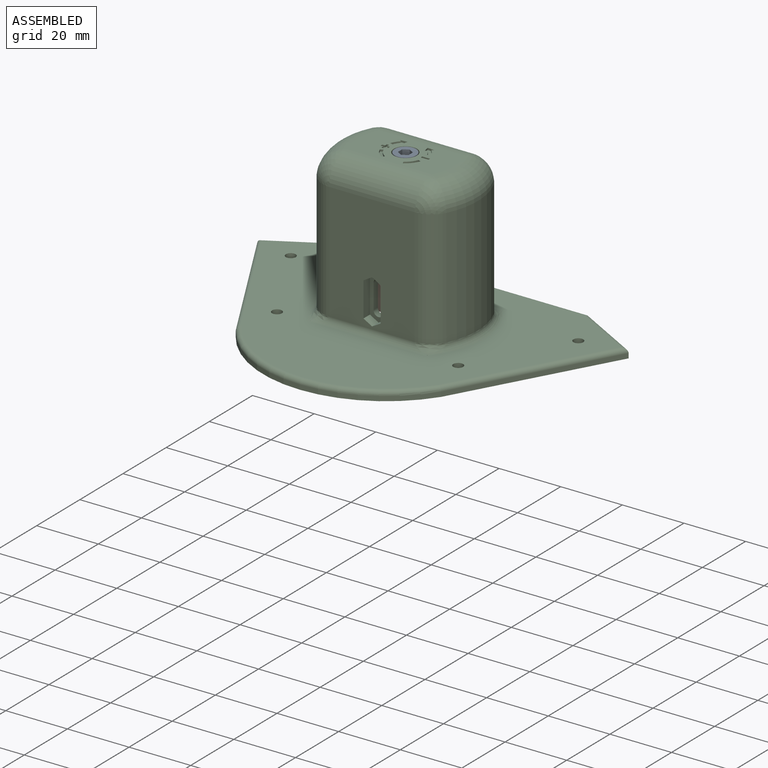
[diagram: assembled view]
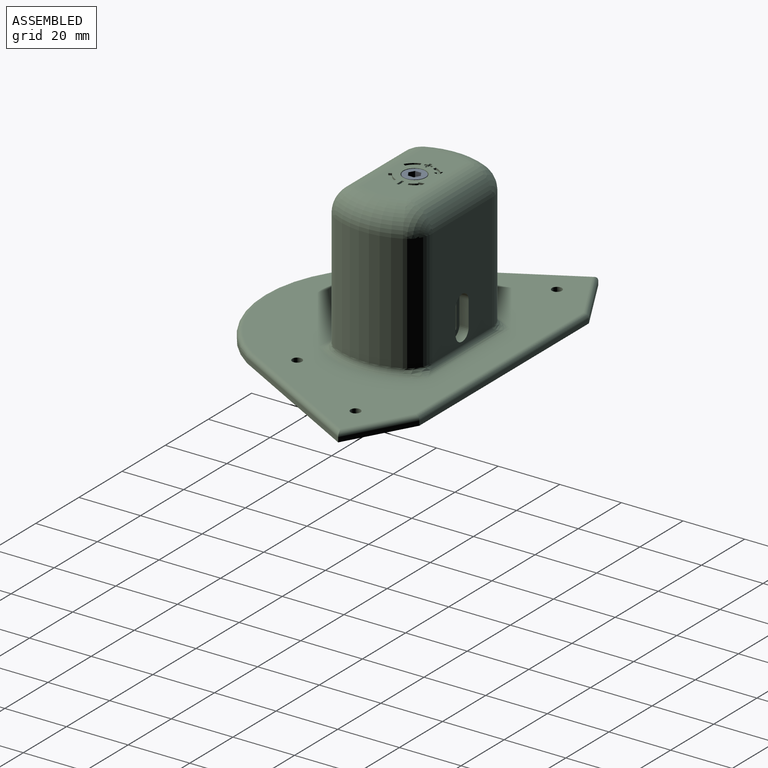
[diagram: assembled view, second angle]
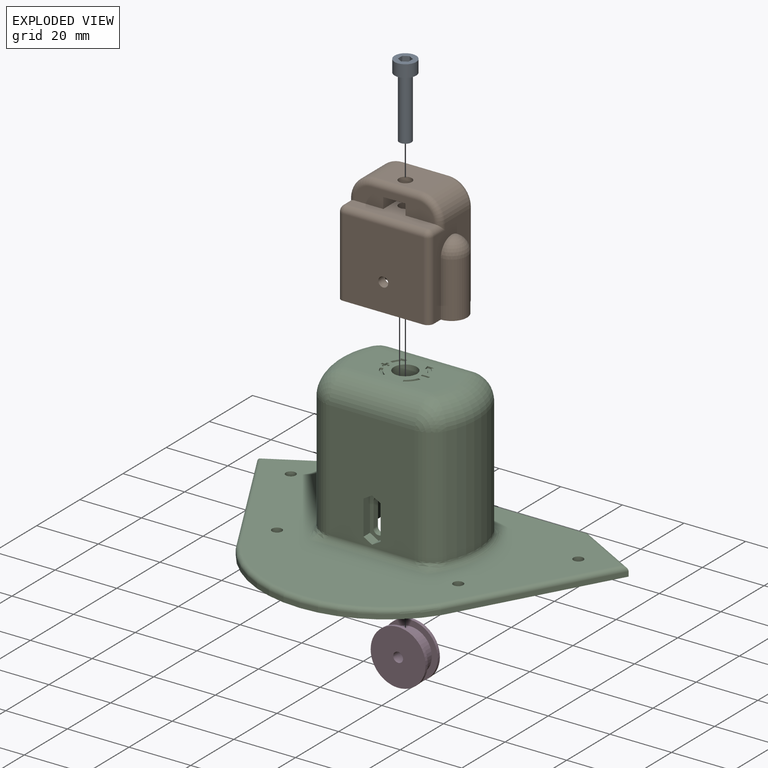
[diagram: exploded view]
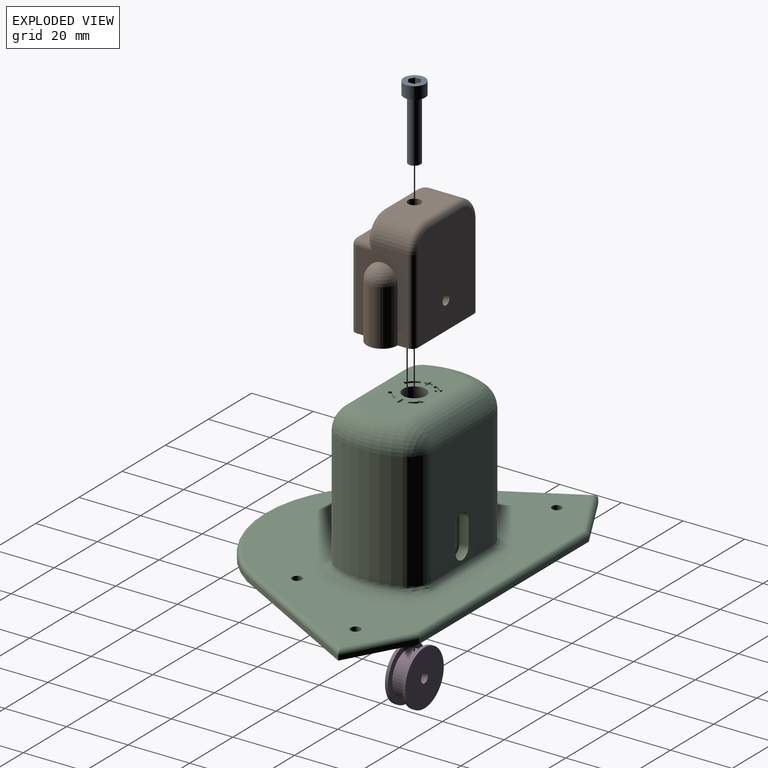
[diagram: exploded view, second angle]
ASSEMBLY  parts=4 mates=5
PART A: 12 faces, bbox 7x7x24 mm
  f0: cylinder r=3.5mm len=7mm, axis (0,0,-1), area 88mm2, adj f1,f2
  f1: plane 7x7mm, normal (0,0,1), area 28.1mm2, adj f0,f5,f6,f7,f8,f9,f10
  f2: plane 7x7mm, normal (0,0,-1), area 25.9mm2, adj f0,f3
  f3: cylinder r=2mm len=20mm, axis (0,0,1), area 251.3mm2, adj f2,f4
  f4: plane 4x4mm, normal (0,0,-1), area 12.6mm2, adj f3
  f5: plane 2x1.73mm, normal (-0.5,0.87,0), area 4mm2, adj f1,f6,f10,f11
  f6: plane 2x2mm, normal (-1,0,0), area 4mm2, adj f1,f5,f7,f11
  f7: plane 2x1.73mm, normal (-0.5,-0.87,0), area 4mm2, adj f1,f6,f8,f11
  f8: plane 2x1.73mm, normal (0.5,-0.87,0), area 4mm2, adj f1,f7,f9,f11
  f9: plane 2x2mm, normal (1,0,0), area 4mm2, adj f1,f8,f10,f11
  f10: plane 2x1.73mm, normal (0.5,0.87,0), area 4mm2, adj f1,f5,f9,f11
  f11: plane 4x3.46mm, normal (0,0,1), area 10.4mm2, adj f5,f6,f7,f8,f9,f10
PART B: 51 faces, bbox 40x20.5x35.6 mm
  f0: plane 27.5x16.5mm, normal (1,0,0), area 224.2mm2, adj f8,f13,f23,f28,f37,f40,f41,f43
  f1: plane 26x25.5mm, normal (0,1,0), area 655mm2, adj f8,f9,f28,f29,f47
  f2: plane 33x26mm, normal (0,-1,0), area 837mm2, adj f8,f10,f23,f24,f25,f26,f27
  f3: plane 12.5x8mm, normal (-1,0,0), area 100mm2, adj f8,f12,f30,f33
  f4: plane 22x19mm, normal (0,1,0), area 358mm2, adj f8,f10,f30,f31,f32
  f5: plane 12.5x8mm, normal (1,0,0), area 100mm2, adj f8,f12,f32,f35
  f6: plane 22x19mm, normal (0,-1,0), area 358mm2, adj f8,f9,f33,f34,f35
  f7: plane 27.5x16.5mm, normal (-1,0,0), area 224.2mm2, adj f8,f14,f27,f29,f38,f39,f48,f50
  f8: plane 40x20.5mm, normal (0,0,-1), area 343mm2, adj f0,f1,f2,f3,f4,f5,f6,f7
  f9: cylinder r=1.6mm len=3.2mm, axis (0,-1,0), area 30.2mm2, adj f1,f6
  f10: cylinder r=1.6mm len=3.2mm, axis (0,-1,0), area 30.2mm2, adj f2,f4
  f11: plane 15x11.35mm, normal (0,0,1), area 156.4mm2, adj f13,f14,f15,f25,f44
  f12: cylinder r=12mm len=24mm, axis (0,1,0), area 457.3mm2, adj f3,f5,f16,f31,f34
  f13: cylinder r=7.5mm len=11.35mm, axis (0,-1,0), area 133.7mm2, adj f0,f11,f24,f42
  f14: cylinder r=7.5mm len=11.35mm, axis (0,1,0), area 133.7mm2, adj f7,f11,f26,f46
  f15: cylinder r=2.1mm len=4.2mm, axis (0,0,1), area 52.8mm2, adj f11,f22
  f16: cylinder r=2.1mm len=7.69mm, axis (0,0,1), area 100.2mm2, adj f12,f21
  f17: plane 7.18x3.5mm, normal (1,0,0), area 25.1mm2, adj f18,f21,f22,f36
  f18: plane 3.6x3.5mm, normal (0.5,0.87,0), area 14.5mm2, adj f17,f19,f21,f22
  f19: plane 3.6x3.5mm, normal (-0.5,0.87,0), area 14.5mm2, adj f18,f20,f21,f22
  f20: plane 7.18x3.5mm, normal (-1,0,0), area 25.1mm2, adj f19,f21,f22,f36
  f21: plane 26x12.41mm, normal (0,0,1), area 127.2mm2, adj f16,f17,f18,f19,f20,f36,f43,f47
  f22: plane 9.26x7.2mm, normal (0,0,-1), area 45.3mm2, adj f15,f17,f18,f19,f20,f36
  f23: cylinder r=2mm len=27.5mm, axis (0,0,1), area 86.4mm2, adj f0,f2,f8,f24
  f24: torus R=5.5mm, axis (0,-1,0), area 33.4mm2, adj f2,f13,f23,f25
  f25: cylinder r=2mm len=15mm, axis (-1,0,0), area 47.1mm2, adj f2,f11,f24,f26
  f26: torus R=5.5mm, axis (0,-1,0), area 33.4mm2, adj f2,f14,f25,f27
  f27: cylinder r=2mm len=27.5mm, axis (0,0,-1), area 86.4mm2, adj f2,f7,f8,f26
  f28: cylinder r=2mm len=25.5mm, axis (0,0,-1), area 80.1mm2, adj f0,f1,f8,f45
  f29: cylinder r=2mm len=25.5mm, axis (0,0,1), area 80.1mm2, adj f1,f7,f8,f49
  f30: cylinder r=1mm len=8mm, axis (0,0,-1), area 12.6mm2, adj f3,f4,f8,f31
  f31: torus R=11mm, axis (0,-1,0), area 57.4mm2, adj f4,f12,f30,f32
  f32: cylinder r=1mm len=8mm, axis (0,0,1), area 12.6mm2, adj f4,f5,f8,f31
  f33: cylinder r=1mm len=8mm, axis (0,0,1), area 12.6mm2, adj f3,f6,f8,f34
  f34: torus R=11mm, axis (0,-1,0), area 57.4mm2, adj f6,f12,f33,f35
  f35: cylinder r=1mm len=8mm, axis (0,0,-1), area 12.6mm2, adj f5,f6,f8,f34
  f36: plane 26x5.5mm, normal (0,1,0), area 104.8mm2, adj f17,f20,f21,f22,f42,f44,f46
  f37: cylinder r=5mm len=18mm, axis (0,0,-1), area 282.7mm2, adj f0,f8,f40
  f38: cylinder r=5mm len=18mm, axis (0,0,-1), area 282.7mm2, adj f7,f8,f39
  f39: sphere r=5mm, area 78.5mm2, adj f7,f38
  f40: sphere r=5mm, area 78.5mm2, adj f0,f37
  f41: cylinder r=2mm len=2mm, axis (0,0,-1), area 2.3mm2, adj f0,f42,f43
  f42: torus R=5.5mm, axis (0,-1,0), area 33.4mm2, adj f13,f36,f41,f44
  f43: cylinder r=2mm len=5.15mm, axis (0,1,0), area 12.2mm2, adj f0,f21,f41,f45
  f44: cylinder r=2mm len=15mm, axis (-1,0,0), area 47.1mm2, adj f11,f36,f42,f46
  f45: sphere r=2mm, area 6.3mm2, adj f28,f43,f47
  f46: torus R=5.5mm, axis (0,-1,0), area 33.4mm2, adj f14,f36,f44,f48
  f47: cylinder r=2mm len=26mm, axis (-1,0,0), area 81.7mm2, adj f1,f21,f45,f49
  f48: cylinder r=2mm len=2mm, axis (0,0,-1), area 2.3mm2, adj f7,f46,f50
  f49: sphere r=2mm, area 6.3mm2, adj f29,f47,f50
  f50: cylinder r=2mm len=5.15mm, axis (0,1,0), area 12.2mm2, adj f7,f21,f48,f49
PART C: 124 faces, bbox 120.5x81.3x51 mm
  f0: cylinder r=1.6mm len=3.2mm, axis (0,1,0), area 10.1mm2, adj f1,f3,f21,f117
  f1: plane 8x2mm, normal (-1,0,0), area 16mm2, adj f0,f2,f21,f117
  f2: cylinder r=1.6mm len=3.2mm, axis (0,1,0), area 10.1mm2, adj f1,f3,f21,f117
  f3: plane 8x2mm, normal (1,0,0), area 16mm2, adj f0,f2,f21,f117
  f4: plane 8x2mm, normal (1,0,0), area 16mm2, adj f5,f7,f17,f112
  f5: cylinder r=1.6mm len=3.2mm, axis (0,1,0), area 10.1mm2, adj f4,f6,f17,f112
  f6: plane 8x2mm, normal (-1,0,0), area 16mm2, adj f5,f7,f17,f112
  f7: cylinder r=1.6mm len=3.2mm, axis (0,1,0), area 10.1mm2, adj f4,f6,f17,f112
  f8: plane 31.09x14.9mm, normal (0,0,1), area 378.3mm2, adj f41,f46,f47,f51,f58,f68,f69,f70
  f9: cylinder r=2.2mm len=4.4mm, axis (0,0,1), area 55.3mm2, adj f39,f40
  f10: plane 120.49x77.95mm, normal (0,0,-1), area 4780.5mm2, adj f11,f12,f13,f14,f15,f16,f17,f18
  f11: plane 78.54x1.5mm, normal (0,1,0), area 117.8mm2, adj f10,f12,f26,f66
  f12: plane 20.98x11.66mm, normal (-0.49,0.87,0), area 36mm2, adj f10,f11,f13,f64
  f13: plane 48.51x26.97mm, normal (-0.87,-0.49,0), area 83.2mm2, adj f10,f12,f14,f62
  f14: cylinder r=40.03mm len=66.56mm, axis (0,0,-1), area 117.9mm2, adj f10,f13,f15,f63
  f15: plane 48.51x26.97mm, normal (0.87,-0.49,0), area 83.2mm2, adj f10,f14,f26,f65
  f16: plane 43x5.26mm, normal (1,0,0), area 226.3mm2, adj f10,f17,f27,f39
  f17: plane 43x30.4mm, normal (0,-1,0), area 1273.6mm2, adj f4,f5,f6,f7,f10,f16,f18,f39
  f18: plane 43x5.26mm, normal (-1,0,0), area 226.3mm2, adj f10,f17,f19,f39
  f19: cylinder r=5.19mm len=43mm, axis (0,0,-1), area 684.8mm2, adj f10,f18,f20,f39
  f20: plane 43x5.26mm, normal (-1,0,0), area 226.3mm2, adj f10,f19,f21,f39
  f21: plane 43x30.4mm, normal (0,1,0), area 1273.6mm2, adj f0,f1,f2,f3,f10,f20,f22,f39
  f22: plane 43x5.26mm, normal (1,0,0), area 226.3mm2, adj f10,f21,f27,f39
  f23: cylinder r=1.6mm len=3.2mm, axis (0,0,-1), area 30.2mm2, adj f10,f29
  f24: cylinder r=1.6mm len=3.2mm, axis (0,0,-1), area 30.2mm2, adj f10,f29
  f25: cylinder r=1.6mm len=3.2mm, axis (0,0,-1), area 30.2mm2, adj f10,f29
  f26: plane 20.98x11.66mm, normal (0.49,0.87,0), area 36mm2, adj f10,f11,f15,f67
  f27: cylinder r=5.19mm len=43mm, axis (0,0,-1), area 684.8mm2, adj f10,f16,f22,f39
  f28: cylinder r=1.6mm len=3.2mm, axis (0,0,-1), area 30.2mm2, adj f10,f29
  f29: plane 116.41x74.95mm, normal (0,0,1), area 4389.4mm2, adj f23,f24,f25,f28,f42,f43,f44,f45
  f30: plane 44x2mm, normal (0,-1,0), area 88mm2, adj f10,f31,f33,f34
  f31: plane 17.48x2mm, normal (-1,0,0), area 35mm2, adj f10,f30,f32,f34
  f32: cylinder r=35.21mm len=44mm, axis (0,0,-1), area 95.1mm2, adj f10,f31,f33,f34
  f33: plane 17.48x2mm, normal (1,0,0), area 35mm2, adj f10,f30,f32,f34
  f34: plane 44x25.2mm, normal (0,0,-1), area 1001mm2, adj f30,f31,f32,f33
  f35: plane 38x27.65mm, normal (0,1,0), area 974.5mm2, adj f42,f49,f51,f53,f113,f114,f115,f116
  f36: cylinder r=25mm len=38mm, axis (0,0,-1), area 861.9mm2, adj f44,f46,f53,f60
  f37: plane 38x27.65mm, normal (0,-1,0), area 979.8mm2, adj f45,f56,f58,f60,f118,f119,f120,f121
  f38: cylinder r=25mm len=38mm, axis (0,0,-1), area 861.9mm2, adj f43,f47,f49,f56
  f39: plane 40.4x20.9mm, normal (0,0,-1), area 700.9mm2, adj f9,f16,f17,f18,f19,f20,f21,f22
  f40: plane 7.5x7.5mm, normal (0,0,1), area 29mm2, adj f9,f41
  f41: cylinder r=3.75mm len=7.5mm, axis (0,0,1), area 94.2mm2, adj f8,f40
  f42: cylinder r=2mm len=38.3mm, axis (-1,0,0), area 99.7mm2, adj f29,f35,f48,f54
  f43: torus R=27mm, axis (0,0,1), area 90.4mm2, adj f29,f38,f48,f55
  f44: torus R=27mm, axis (0,0,1), area 90.4mm2, adj f29,f36,f54,f61
  f45: cylinder r=2mm len=38.3mm, axis (1,0,0), area 99.7mm2, adj f29,f37,f55,f61
  f46: torus R=17mm, axis (0,0,1), area 251.9mm2, adj f8,f36,f52,f59
  f47: torus R=17mm, axis (0,0,1), area 251.9mm2, adj f8,f38,f50,f57
  f48: bspline ~7.2x6.51mm, area 19.4mm2, adj f42,f43,f49
  f49: cylinder r=8mm len=38mm, axis (0,0,-1), area 339.6mm2, adj f35,f38,f48,f50
  f50: sphere r=8mm, area 71.5mm2, adj f47,f49,f51
  f51: cylinder r=8mm len=27.65mm, axis (1,0,0), area 347.5mm2, adj f8,f35,f50,f52
  f52: sphere r=8mm, area 71.5mm2, adj f46,f51,f53
  f53: cylinder r=8mm len=38mm, axis (0,0,-1), area 339.6mm2, adj f35,f36,f52,f54
  f54: bspline ~7.2x6.51mm, area 19.4mm2, adj f42,f44,f53
  f55: bspline ~7.2x6.51mm, area 19.4mm2, adj f43,f45,f56
  f56: cylinder r=8mm len=38mm, axis (0,0,-1), area 339.6mm2, adj f37,f38,f55,f57
  f57: sphere r=8mm, area 71.5mm2, adj f47,f56,f58
  f58: cylinder r=8mm len=27.65mm, axis (-1,0,0), area 347.5mm2, adj f8,f37,f57,f59
  f59: sphere r=8mm, area 71.5mm2, adj f46,f58,f60
  f60: cylinder r=8mm len=38mm, axis (0,0,-1), area 339.6mm2, adj f36,f37,f59,f61
  f61: bspline ~7.2x6.51mm, area 19.4mm2, adj f44,f45,f60
  f62: cylinder r=1.5mm len=49.24mm, axis (-0.49,0.87,0), area 129.4mm2, adj f13,f29,f63,f64
  f63: torus R=38.53mm, axis (0,0,1), area 182.5mm2, adj f14,f29,f62,f65
  f64: cylinder r=1.5mm len=21.71mm, axis (0.87,0.49,0), area 54.8mm2, adj f12,f29,f62,f66
  f65: cylinder r=1.5mm len=49.24mm, axis (-0.49,-0.87,0), area 129.4mm2, adj f15,f29,f63,f67
  f66: cylinder r=1.5mm len=78.54mm, axis (1,0,0), area 184.1mm2, adj f11,f29,f64,f67
  f67: cylinder r=1.5mm len=21.71mm, axis (0.87,-0.49,0), area 54.8mm2, adj f26,f29,f65,f66
  f68: plane 2.5x0.6mm, normal (0,-1,0), area 1.5mm2, adj f8,f69,f71,f72
  f69: plane 0.75x0.6mm, normal (1,0,0), area 0.4mm2, adj f8,f68,f70,f72
  f70: plane 2.5x0.6mm, normal (0,1,0), area 1.5mm2, adj f8,f69,f71,f72
  f71: plane 0.75x0.6mm, normal (-1,0,0), area 0.4mm2, adj f8,f68,f70,f72
  f72: plane 2.5x0.75mm, normal (0,0,1), area 1.9mm2, adj f68,f69,f70,f71
  f73: cylinder r=6mm len=3.14mm, axis (0,0,1), area 2.5mm2, adj f8,f74,f76,f77
  f74: plane 0.87x0.6mm, normal (0.87,0.5,0), area 0.6mm2, adj f8,f73,f75,f77
  f75: cylinder r=7mm len=3.67mm, axis (0,0,1), area 2.9mm2, adj f8,f74,f76,f77
  f76: plane 0.94x0.6mm, normal (-0.34,-0.94,0), area 0.6mm2, adj f8,f73,f75,f77
  f77: plane 4.01x3.58mm, normal (0,0,1), area 4.5mm2, adj f73,f74,f75,f76
  f78: plane 0.88x0.6mm, normal (0,-1,0), area 0.5mm2, adj f8,f79,f89,f90
  f79: plane 0.88x0.6mm, normal (-1,0,0), area 0.5mm2, adj f8,f78,f80,f90
  f80: plane 0.75x0.6mm, normal (0,-1,0), area 0.4mm2, adj f8,f79,f81,f90
  f81: plane 0.88x0.6mm, normal (1,0,0), area 0.5mm2, adj f8,f80,f82,f90
  f82: plane 0.88x0.6mm, normal (0,-1,0), area 0.5mm2, adj f8,f81,f83,f90
  f83: plane 0.75x0.6mm, normal (1,0,0), area 0.4mm2, adj f8,f82,f84,f90
  f84: plane 0.88x0.6mm, normal (0,1,0), area 0.5mm2, adj f8,f83,f85,f90
  f85: plane 0.88x0.6mm, normal (1,0,0), area 0.5mm2, adj f8,f84,f86,f90
  f86: plane 0.75x0.6mm, normal (0,1,0), area 0.4mm2, adj f8,f85,f87,f90
  f87: plane 0.88x0.6mm, normal (-1,0,0), area 0.5mm2, adj f8,f86,f88,f90
  f88: plane 0.88x0.6mm, normal (0,1,0), area 0.5mm2, adj f8,f87,f89,f90
  f89: plane 0.75x0.6mm, normal (-1,0,0), area 0.4mm2, adj f8,f78,f88,f90
  f90: plane 2.5x2.5mm, normal (0,0,1), area 3.2mm2, adj f78,f79,f80,f81,f82,f83,f84,f85
  f91: cylinder r=6mm len=2.19mm, axis (0,0,1), area 1.6mm2, adj f8,f92,f97,f98
  f92: plane 0.6x0.53mm, normal (0.71,0.71,0), area 0.4mm2, adj f8,f91,f93,f98
  f93: plane 1.92x0.6mm, normal (-0.97,0.23,0), area 1.2mm2, adj f8,f92,f94,f98
  f94: plane 2.23x0.6mm, normal (0.07,-1,0), area 1.3mm2, adj f8,f93,f95,f98
  f95: plane 0.6x0.53mm, normal (0.71,0.71,0), area 0.4mm2, adj f8,f94,f96,f98
  f96: cylinder r=7mm len=2.56mm, axis (0,0,1), area 1.8mm2, adj f8,f95,f97,f98
  f97: plane 0.94x0.6mm, normal (0.34,0.94,0), area 0.6mm2, adj f8,f91,f96,f98
  f98: plane 3.58x3.33mm, normal (0,0,1), area 4.9mm2, adj f91,f92,f93,f94,f95,f96,f97
  f99: cylinder r=7mm len=2.56mm, axis (0,0,1), area 1.8mm2, adj f8,f100,f105,f106
  f100: plane 0.6x0.53mm, normal (-0.71,0.71,0), area 0.4mm2, adj f8,f99,f101,f106
  f101: plane 2.23x0.6mm, normal (-0.07,-1,0), area 1.3mm2, adj f8,f100,f102,f106
  f102: plane 1.92x0.6mm, normal (0.97,0.23,0), area 1.2mm2, adj f8,f101,f103,f106
  f103: plane 0.6x0.53mm, normal (-0.71,0.71,0), area 0.4mm2, adj f8,f102,f104,f106
  f104: cylinder r=6mm len=2.19mm, axis (0,0,1), area 1.6mm2, adj f8,f103,f105,f106
  f105: plane 0.94x0.6mm, normal (-0.34,0.94,0), area 0.6mm2, adj f8,f99,f104,f106
  f106: plane 3.58x3.33mm, normal (0,0,1), area 4.9mm2, adj f99,f100,f101,f102,f103,f104,f105
  f107: cylinder r=6mm len=3.14mm, axis (0,0,1), area 2.5mm2, adj f8,f108,f110,f111
  f108: plane 0.94x0.6mm, normal (0.34,-0.94,0), area 0.6mm2, adj f8,f107,f109,f111
  f109: cylinder r=7mm len=3.67mm, axis (0,0,1), area 2.9mm2, adj f8,f108,f110,f111
  f110: plane 0.87x0.6mm, normal (-0.87,0.5,0), area 0.6mm2, adj f8,f107,f109,f111
  f111: plane 4.01x3.58mm, normal (0,0,1), area 4.5mm2, adj f107,f108,f109,f110
  f112: plane 14x6mm, normal (0,1,0), area 42.6mm2, adj f4,f5,f6,f7,f113,f114,f115,f116
  f113: plane 8x3mm, normal (1,0,0), area 24mm2, adj f35,f112,f114,f116
  f114: cylinder r=3mm len=6mm, axis (0,1,0), area 28.3mm2, adj f35,f112,f113,f115
  f115: plane 8x3mm, normal (-1,0,0), area 24mm2, adj f35,f112,f114,f116
  f116: cylinder r=3mm len=6mm, axis (0,1,0), area 28.3mm2, adj f35,f112,f113,f115
  f117: plane 14.4x5.54mm, normal (0,-1,0), area 37.3mm2, adj f0,f1,f2,f3,f118,f119,f120,f121
  f118: plane 11.2x3mm, normal (1,0,0), area 33.6mm2, adj f37,f117,f119,f123
  f119: plane 3x2.77mm, normal (0.5,0,0.87), area 9.6mm2, adj f37,f117,f118,f120
  f120: plane 3x2.77mm, normal (-0.5,0,0.87), area 9.6mm2, adj f37,f117,f119,f121
  f121: plane 11.2x3mm, normal (-1,0,0), area 33.6mm2, adj f37,f117,f120,f122
  f122: plane 3x2.77mm, normal (-0.5,0,-0.87), area 9.6mm2, adj f37,f117,f121,f123
  f123: plane 3x2.77mm, normal (0.5,0,-0.87), area 9.6mm2, adj f37,f117,f118,f122
PART D: 8 faces, bbox 17.9x17.9x6.6 mm
  f0: cylinder r=1.6mm len=6.6mm, axis (0,0,-1), area 66.4mm2, adj f3,f6
  f1: cylinder r=8.93mm len=17.85mm, axis (0,0,-1), area 56.1mm2, adj f2,f3
  f2: plane 17.85x17.85mm, normal (0,0,1), area 96.3mm2, adj f1,f4
  f3: plane 17.85x17.85mm, normal (0,0,-1), area 242.2mm2, adj f0,f1
  f4: cylinder r=7mm len=14mm, axis (0,0,-1), area 202.3mm2, adj f2,f7
  f5: cylinder r=8.93mm len=17.85mm, axis (0,0,-1), area 56.1mm2, adj f6,f7
  f6: plane 17.85x17.85mm, normal (0,0,1), area 242.2mm2, adj f0,f5
  f7: plane 17.85x17.85mm, normal (0,0,-1), area 96.3mm2, adj f4,f5
PLACE A t=(0,-29.07,47)mm
PLACE B rot(axis=(0,0,-1),180deg) t=(0,-29.07,7.83)mm
PLACE C t=(-15.8,-50.45,0)mm fixed
PLACE D rot(axis=(0.94,0.25,-0.25),93.8deg) t=(0,-25.82,16.83)mm
MATE planar B.f9 <-> D.f1  axis (0,-1,0) through (0,-21.82,16.83)mm
MATE cylindrical B.f15 <-> C.f9  axis (0,0,1) through (0,-29.07,42.83)mm
MATE fastened A.f3 <-> C.f9  axis (0,0,-1) through (0,-29.07,47)mm
MATE cylindrical D.f0 <-> B.f9  axis (0,-1,0) through (0,-32.42,16.83)mm
MATE parallel B.f1 <-> C.f21  axis (0,-1,0) through (0,-39.32,20.63)mm
